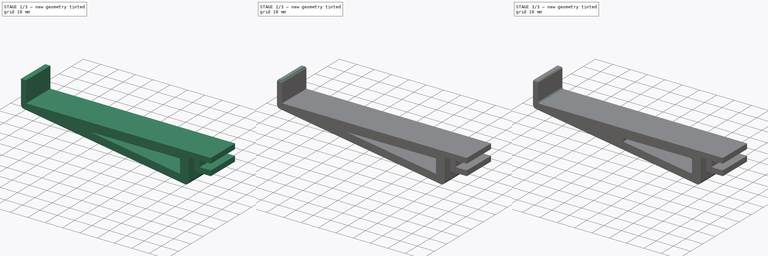
[diagram: build sequence overview — one tinted view per stage of 3, left to right]
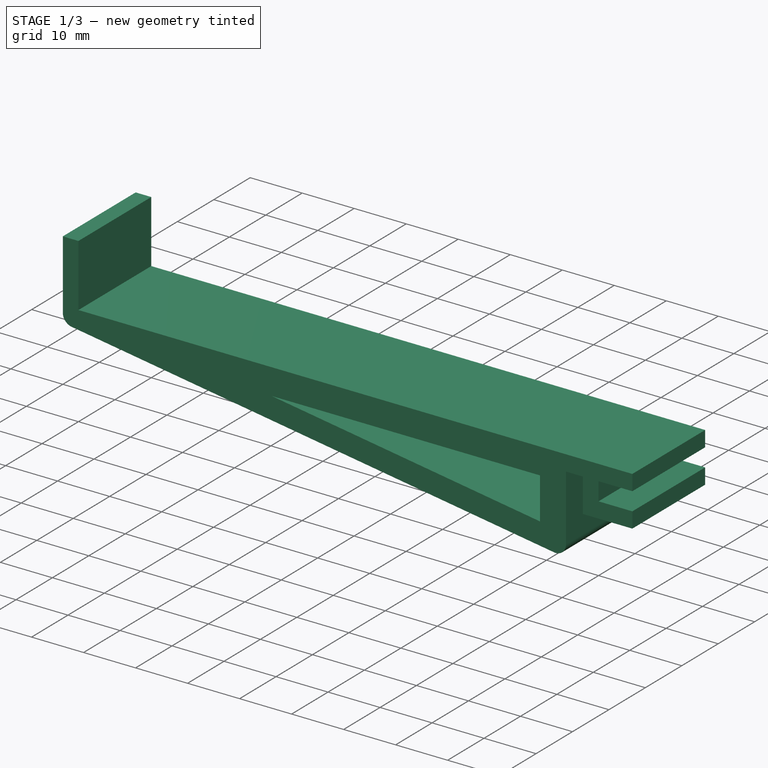
[diagram: stage 1 of 3 — iso view after this stage's code; geometry added in this stage tinted green]
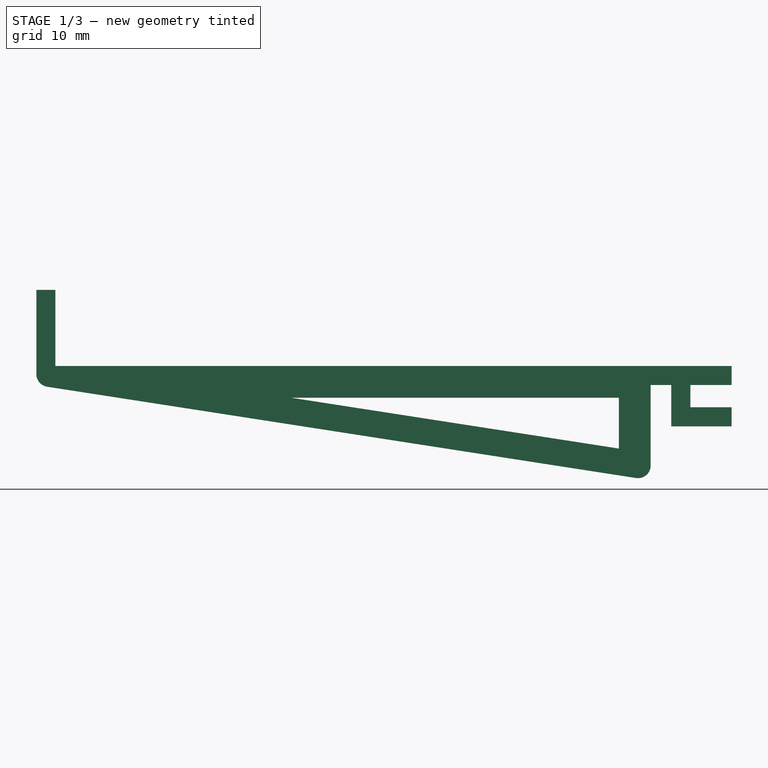
[diagram: stage 1 of 3 — front view after this stage's code; geometry added in this stage tinted green]
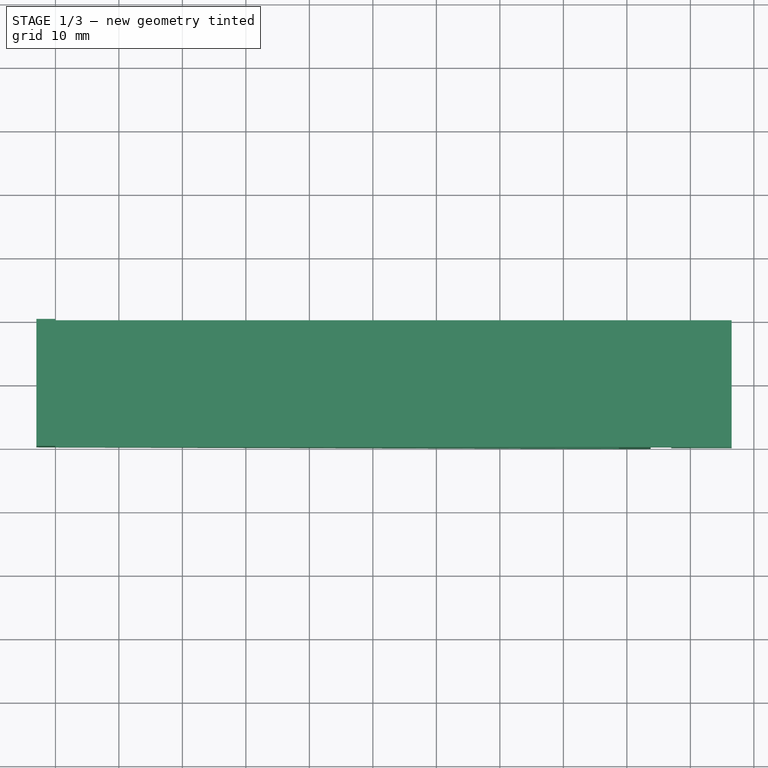
[diagram: stage 1 of 3 — top view after this stage's code; geometry added in this stage tinted green]
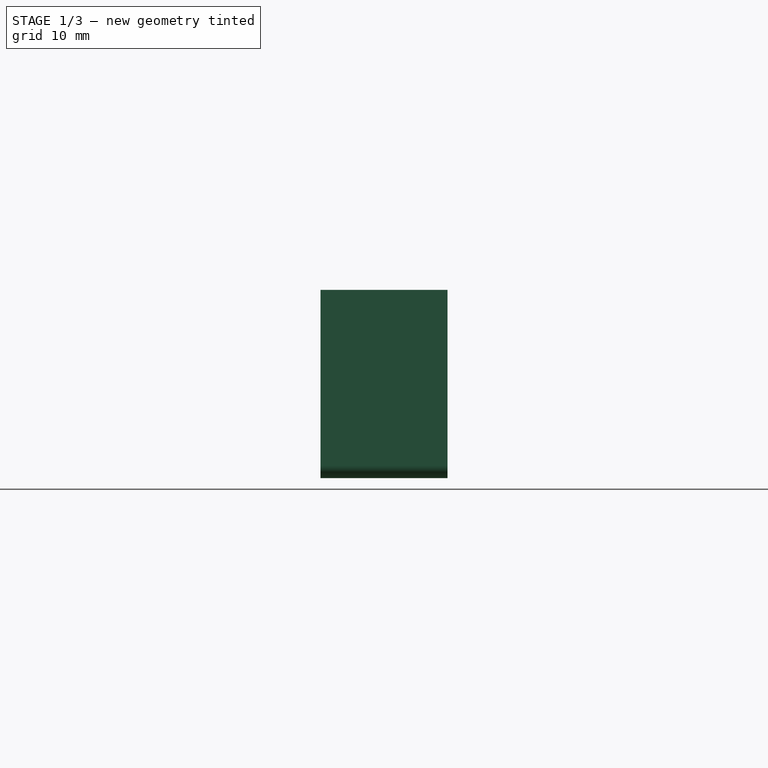
[diagram: stage 1 of 3 — right view after this stage's code; geometry added in this stage tinted green]
FCSTD DOCUMENT  (FreeCAD 0.20R29177 +233 (Git))
Label: laptop_bracket
License: All rights reserved
LicenseURL: http://en.wikipedia.org/wiki/All_rights_reserved
objects: PartDesign::Fillet×4, Sketcher::SketchObject×1, PartDesign::Pad×1, PartDesign::Body×1
note: 12 computed .brp shape members not serialized (recipe doc carries the construction recipe); baked Part::Feature solids carry a one-line shape summary decoded from their .brp

FEATURE [Sketcher::SketchObject] Sketch
  FullyConstrained = true
  MapMode = 5
  Placement = pos=(0,0,0) rot=(1,0,0;1.5708rad)
  Support = -> [XZ_Plane]
  sketch-geometry (33):
    g0: LineSegment StartX=-3 StartY=15 StartZ=0 EndX=0 EndY=15 EndZ=0
    g1: LineSegment StartX=0 StartY=15 StartZ=0 EndX=0 EndY=0 EndZ=0
    g2: LineSegment StartX=0 StartY=0 StartZ=0 EndX=-3 EndY=0 EndZ=0
    g3: LineSegment StartX=-3 StartY=0 StartZ=0 EndX=-3 EndY=15 EndZ=0
    g4: LineSegment StartX=-3 StartY=0 StartZ=0 EndX=106.5 EndY=0 EndZ=0
    g5: LineSegment StartX=106.5 StartY=0 StartZ=0 EndX=106.5 EndY=3 EndZ=0
    g6: LineSegment StartX=106.5 StartY=3 StartZ=0 EndX=-3 EndY=3 EndZ=0
    g7: LineSegment StartX=-3 StartY=3 StartZ=0 EndX=-3 EndY=0 EndZ=0
    g8: LineSegment StartX=97 StartY=0 StartZ=0 EndX=100 EndY=0 EndZ=0
    g9: LineSegment StartX=100 StartY=0 StartZ=0 EndX=100 EndY=-6.5 EndZ=0
    g10: LineSegment StartX=100 StartY=-6.5 StartZ=0 EndX=97 EndY=-6.5 EndZ=0
    g11: LineSegment StartX=97 StartY=-6.5 StartZ=0 EndX=97 EndY=0 EndZ=0
    g12: LineSegment StartX=97 StartY=-6.5 StartZ=0 EndX=106.5 EndY=-6.5 EndZ=0
    g13: LineSegment StartX=106.5 StartY=-6.5 StartZ=0 EndX=106.5 EndY=-3.5 EndZ=0
    g14: LineSegment StartX=106.5 StartY=-3.5 StartZ=0 EndX=97 EndY=-3.5 EndZ=0
    g15: LineSegment StartX=97 StartY=-3.5 StartZ=0 EndX=97 EndY=-6.5 EndZ=0
    g16: LineSegment StartX=0 StartY=15 StartZ=0 EndX=-3 EndY=15 EndZ=0
    g17: LineSegment StartX=-3 StartY=15 StartZ=0 EndX=-3 EndY=0 EndZ=0
    g18: LineSegment StartX=97 StartY=0 StartZ=0 EndX=97 EndY=-6.5 EndZ=0
    g19: LineSegment StartX=97 StartY=-6.5 StartZ=0 EndX=106.5 EndY=-6.5 EndZ=0
    g20: LineSegment StartX=106.5 StartY=-6.5 StartZ=0 EndX=106.5 EndY=-3.5 EndZ=0
    g21: LineSegment StartX=106.5 StartY=-3.5 StartZ=0 EndX=100 EndY=-3.5 EndZ=0
    g22: LineSegment StartX=100 StartY=-3.5 StartZ=0 EndX=100 EndY=0 EndZ=0
    g23: LineSegment StartX=100 StartY=0 StartZ=0 EndX=106.5 EndY=0 EndZ=0
    g24: LineSegment StartX=106.5 StartY=0 StartZ=0 EndX=106.5 EndY=3 EndZ=0
    g25: LineSegment StartX=106.5 StartY=3 StartZ=0 EndX=0 EndY=3 EndZ=0
    g26: LineSegment StartX=0 StartY=3 StartZ=0 EndX=0 EndY=15 EndZ=0
    g27: LineSegment StartX=-3 StartY=0 StartZ=0 EndX=93.75 EndY=-15 EndZ=0
    g28: LineSegment StartX=93.75 StartY=-15 StartZ=0 EndX=93.75 EndY=0 EndZ=0
    g29: LineSegment StartX=93.75 StartY=0 StartZ=0 EndX=97 EndY=0 EndZ=0
    g30: LineSegment StartX=37.15 StartY=-2 StartZ=0 EndX=88.75 EndY=-2 EndZ=0
    g31: LineSegment StartX=88.75 StartY=-2 StartZ=0 EndX=88.75 EndY=-10 EndZ=0
    g32: LineSegment StartX=37.15 StartY=-2 StartZ=0 EndX=88.75 EndY=-10 EndZ=0
  constraints (85):
    c: Coincident(g0,g1)
    c: Coincident(g1,g2)
    c: Coincident(g2,g3)
    c: Coincident(g3,g0)
    c: Horizontal(g0)
    c: Horizontal(g2)
    c: Vertical(g1)
    c: Coincident(g1,g-1)
    c: Coincident(g4,g5)
    c: Coincident(g5,g6)
    c: Coincident(g6,g7)
    c: Coincident(g7,g4)
    c: Horizontal(g4)
    c: Horizontal(g6)
    c: Vertical(g5)
    c: Vertical(g7)
    c: Coincident(g4,g2)
    c: Coincident(g8,g9)
    c: Coincident(g9,g10)
    c: Coincident(g10,g11)
    c: Coincident(g11,g8)
    c: Horizontal(g8)
    c: Horizontal(g10)
    c: Vertical(g9)
    c: Vertical(g11)
    c: PointOnObject(g8,g4)
    c: Coincident(g12,g13)
    c: Coincident(g13,g14)
    c: Coincident(g14,g15)
    c: Coincident(g15,g12)
    c: Horizontal(g12)
    c: Horizontal(g14)
    c: Vertical(g15)
    c: Coincident(g12,g10)
    c: DistanceX(g0,g0) = 3
    c: DistanceY(g4,g5) = 3
    c: DistanceX(g8,g8) = 3
    c: DistanceY(g13,g13) = 3
    c: DistanceY(g13,g4) = 3.5
    c: Tangent(g13,g5)
    c: DistanceX(g2,g8) = 100
    c: DistanceX(g10,g12) = 9.5
    c: Coincident(g16,g0)
    c: Coincident(g17,g16)
    c: Coincident(g18,g10)
    c: Coincident(g19,g18)
    c: Coincident(g20,g19)
    c: Coincident(g21,g20)
    c: PointOnObject(g21,g9)
    c: Coincident(g22,g21)
    c: Coincident(g23,g22)
    c: Coincident(g24,g23)
    c: Coincident(g24,g5)
    c: Coincident(g25,g24)
    c: PointOnObject(g25,g1)
    c: Horizontal(g25)
    c: Coincident(g26,g25)
    c: Coincident(g26,g16)
    c: Coincident(g16,g0)
    c: Coincident(g17,g2)
    c: Vertical(g17)
    c: PointOnObject(g18,g11)
    c: Coincident(g19,g12)
    c: Coincident(g20,g13)
    c: PointOnObject(g21,g14)
    c: Coincident(g22,g8)
    c: Coincident(g4,g23)
    c: Coincident(g27,g17)
    c: Coincident(g28,g27)
    c: Vertical(g28)
    c: Coincident(g29,g28)
    c: Coincident(g29,g18)
    c: DistanceX(g29,g29) = 3.25
    c: DistanceY(g28,g28) = 15
    c: Tangent(g29,g4)
    c: Horizontal(g30)
    c: Coincident(g31,g30)
    c: Vertical(g31)
    c: Coincident(g32,g30)
    c: Parallel(g27,g32)
    c: Coincident(g32,g31)
    c: DistanceX(g31,g27) = 5
    c: DistanceY(g27,g31) = 5
    c: DistanceY(g30,g24) = 5
    c: DistanceY(g17,g17) = 15
FEATURE [PartDesign::Pad] Pad
  Direction = (0,-1,2e-16)
  Length = 20
  Length2 = 10
  Placement = pos=(0,0,0) rot=(1,0,0;1.5708rad)
  Profile = -> Sketch
  ReferenceAxis = -> Sketch [N_Axis]
  Type = 0
FEATURE [PartDesign::Fillet] Fillet
  Base = -> Pad [Edge5,Edge8]
  BaseFeature = -> Pad
  Placement = pos=(0,0,0) rot=(1,0,0;1.5708rad)
  Radius = 2
  SupportTransform = false
  UseAllEdges = false
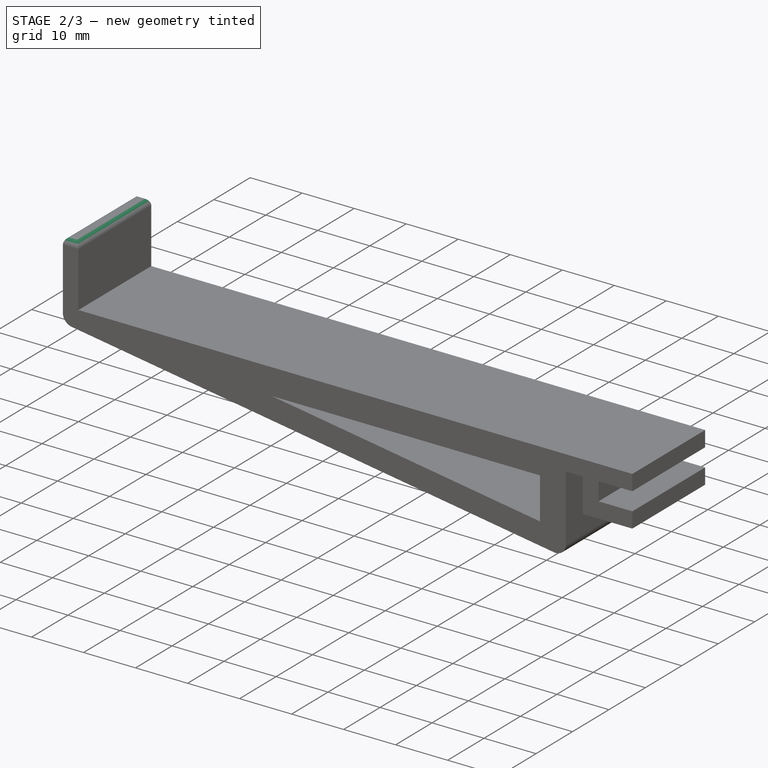
[diagram: stage 2 of 3 — iso view after this stage's code; geometry added in this stage tinted green]
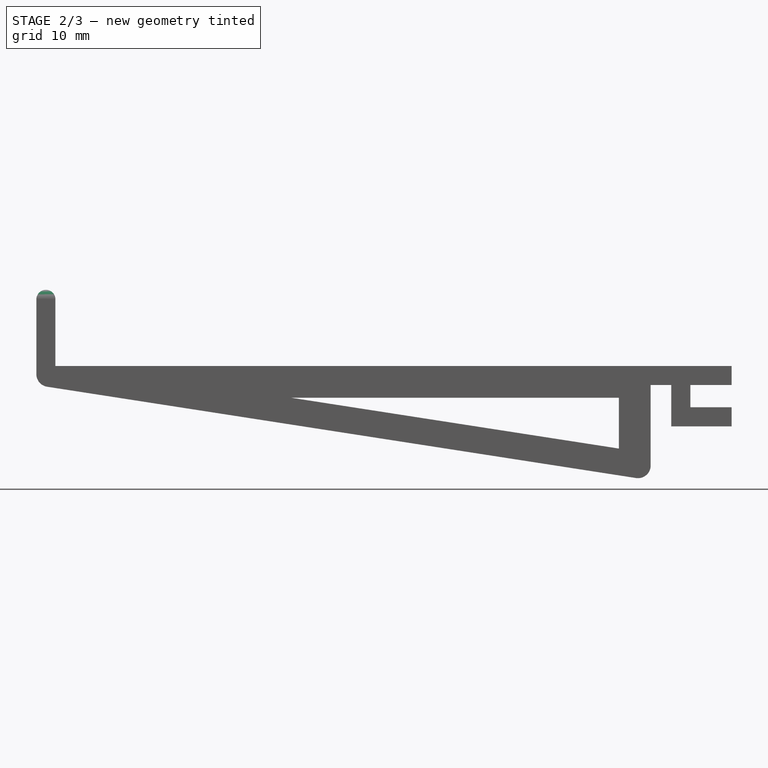
[diagram: stage 2 of 3 — front view after this stage's code; geometry added in this stage tinted green]
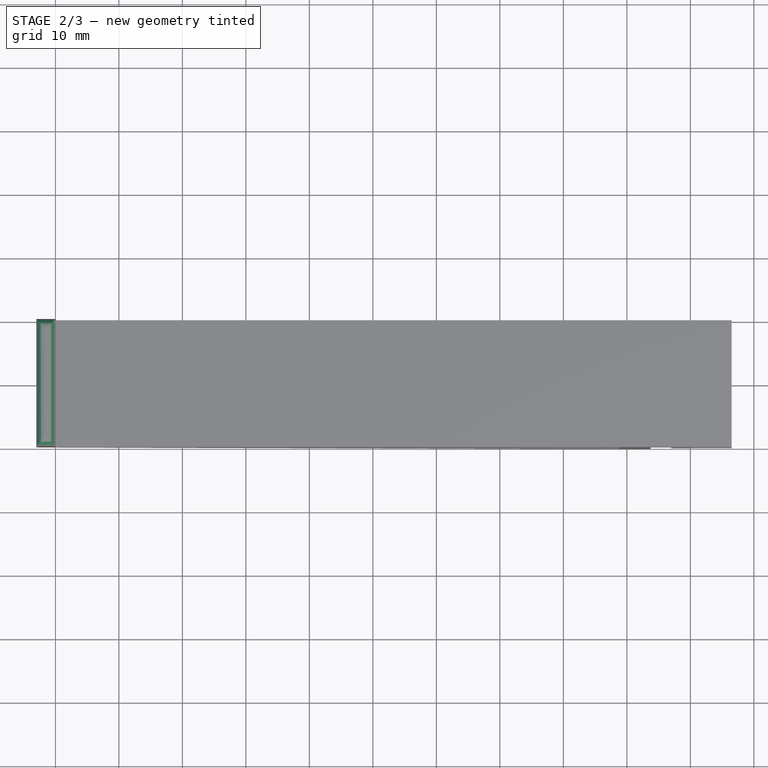
[diagram: stage 2 of 3 — top view after this stage's code; geometry added in this stage tinted green]
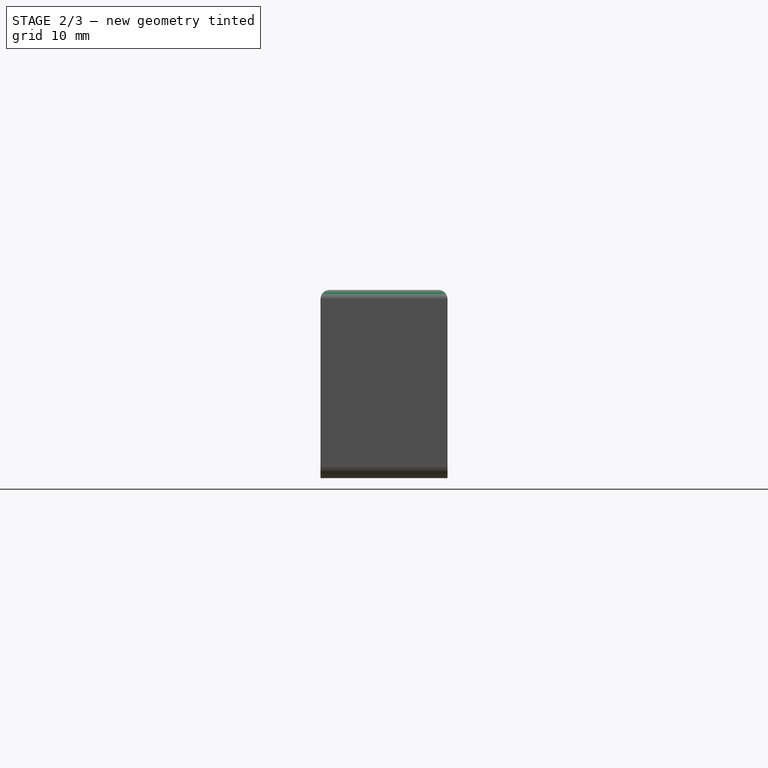
[diagram: stage 2 of 3 — right view after this stage's code; geometry added in this stage tinted green]
FEATURE [PartDesign::Fillet] Fillet001
  Base = -> Fillet [Face4]
  BaseFeature = -> Fillet
  Placement = pos=(0,0,0) rot=(1,0,0;1.5708rad)
  Radius = 1.49
  SupportTransform = false
  UseAllEdges = false
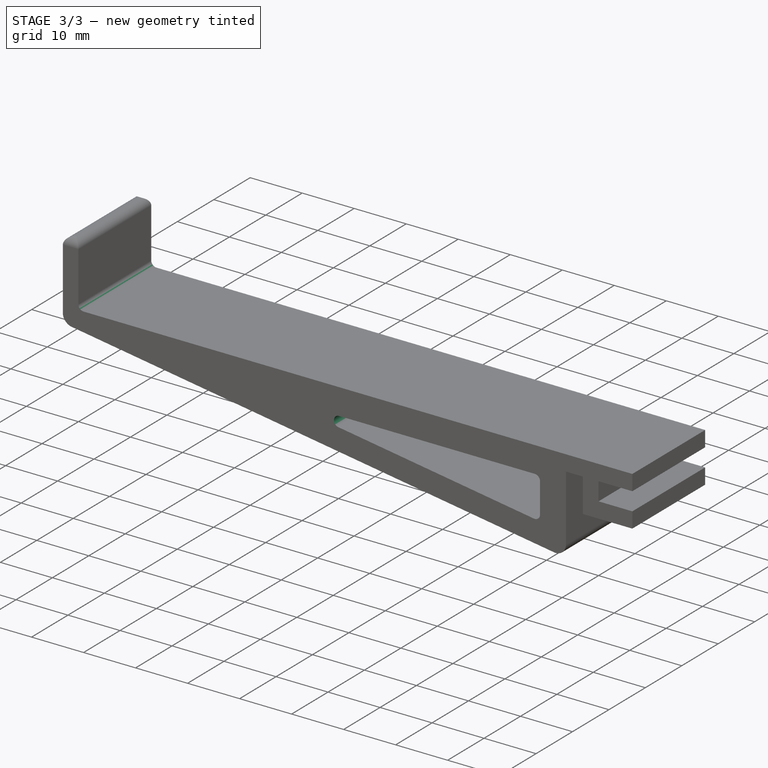
[diagram: stage 3 of 3 — iso view after this stage's code; geometry added in this stage tinted green]
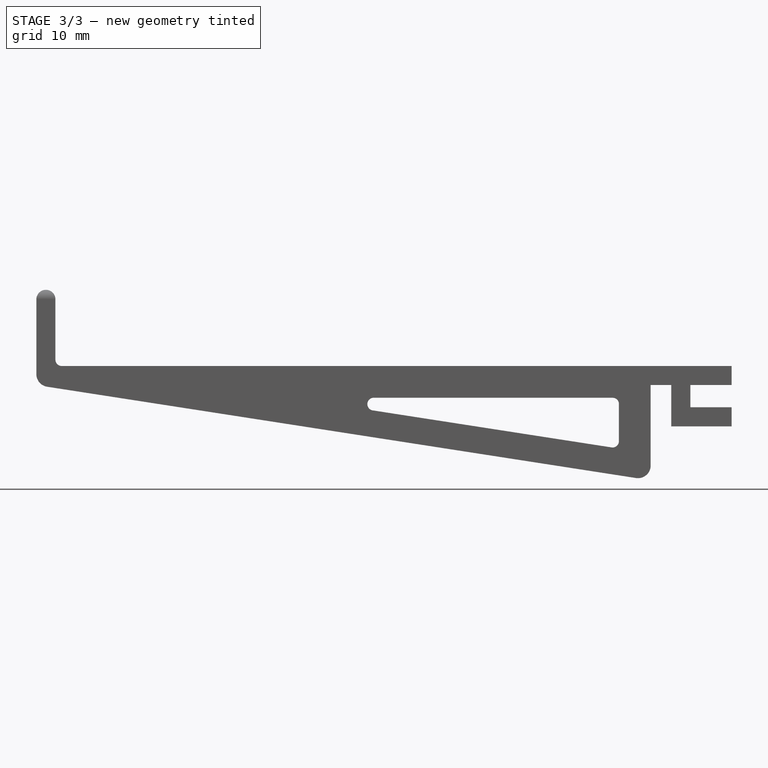
[diagram: stage 3 of 3 — front view after this stage's code; geometry added in this stage tinted green]
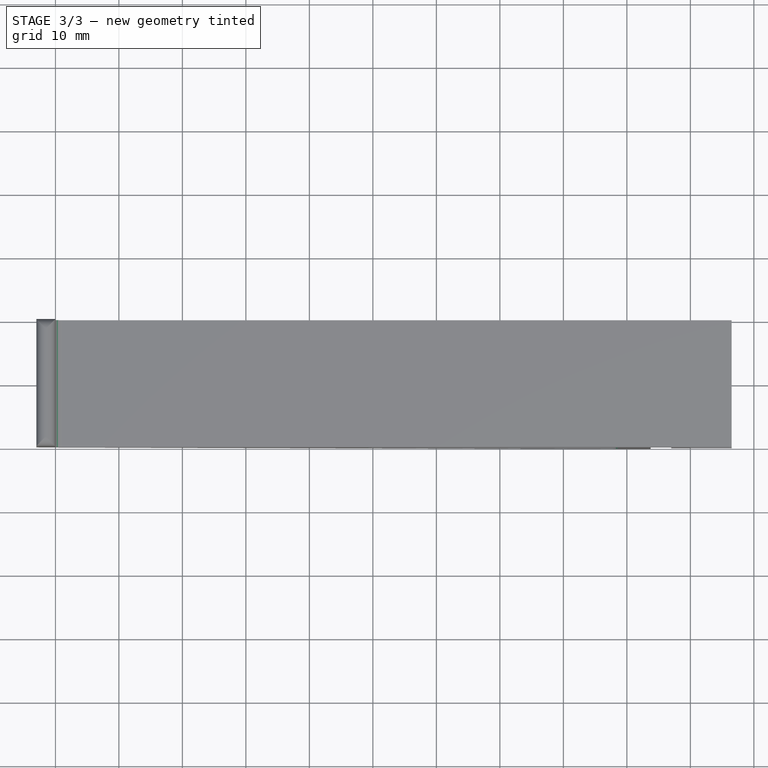
[diagram: stage 3 of 3 — top view after this stage's code; geometry added in this stage tinted green]
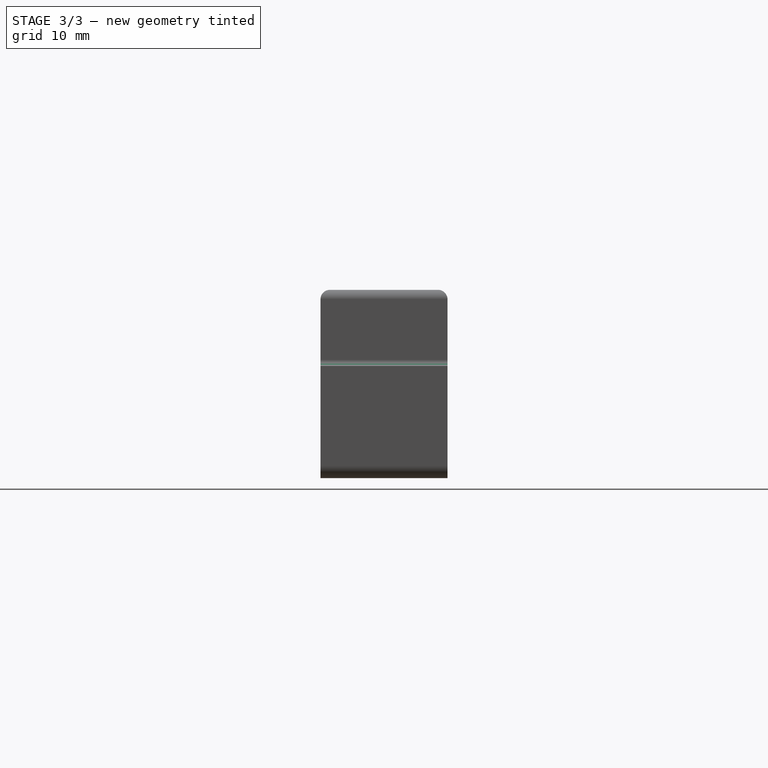
[diagram: stage 3 of 3 — right view after this stage's code; geometry added in this stage tinted green]
FEATURE [PartDesign::Fillet] Fillet002
  Base = -> Fillet001 [Edge60,Edge61,Edge62]
  BaseFeature = -> Fillet001
  Placement = pos=(0,0,0) rot=(1,0,0;1.5708rad)
  Radius = 1
  SupportTransform = false
  UseAllEdges = false
FEATURE [PartDesign::Fillet] Fillet003
  Base = -> Fillet002 [Edge44]
  BaseFeature = -> Fillet002
  Placement = pos=(0,0,0) rot=(1,0,0;1.5708rad)
  Radius = 1
  SupportTransform = false
  UseAllEdges = false
FEATURE [PartDesign::Body] Body
  Group = -> [Sketch,Pad,Fillet,Fillet001,Fillet002,Fillet003]
  Origin = -> Origin
  Tip = -> Fillet003
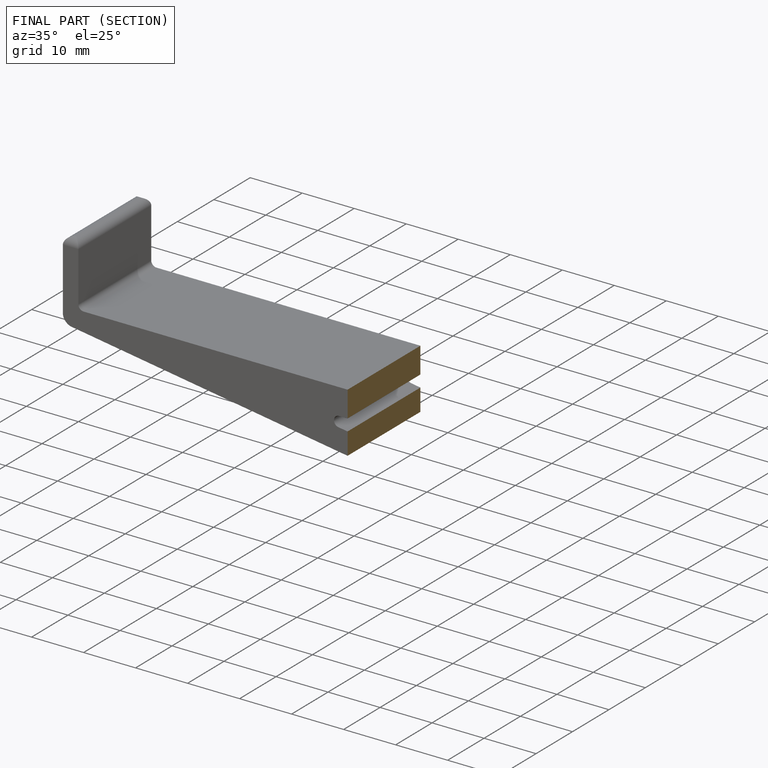
[diagram: finished part — half-section view (interior)]
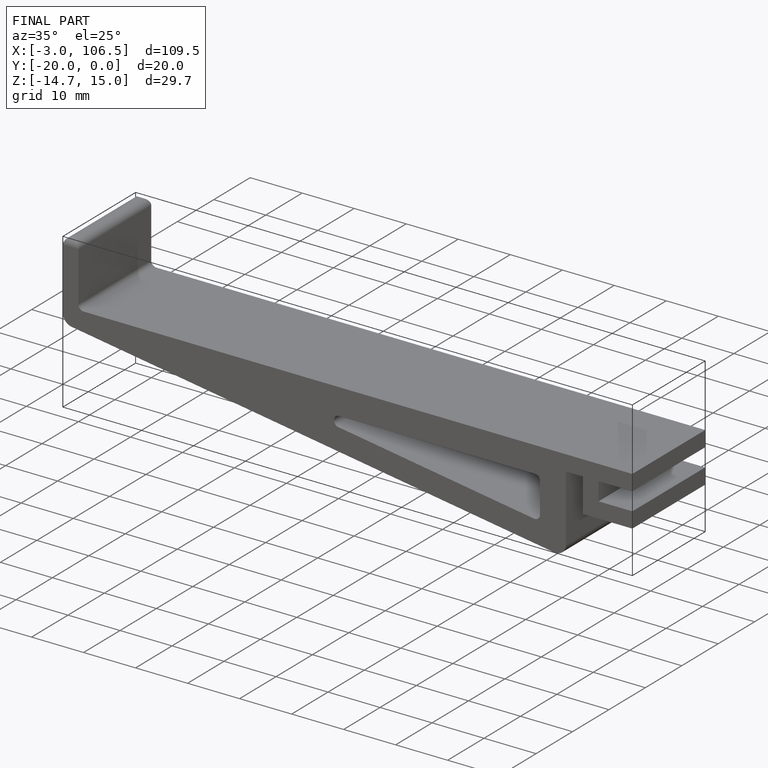
[diagram: finished part — iso view with bounding-box wireframe]
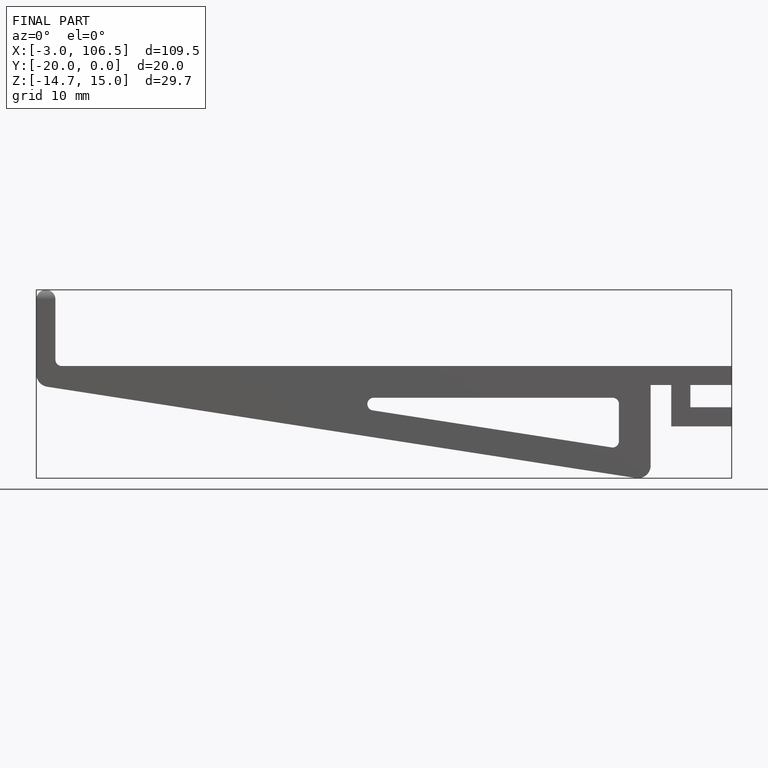
[diagram: finished part — front view with bounding-box wireframe]
